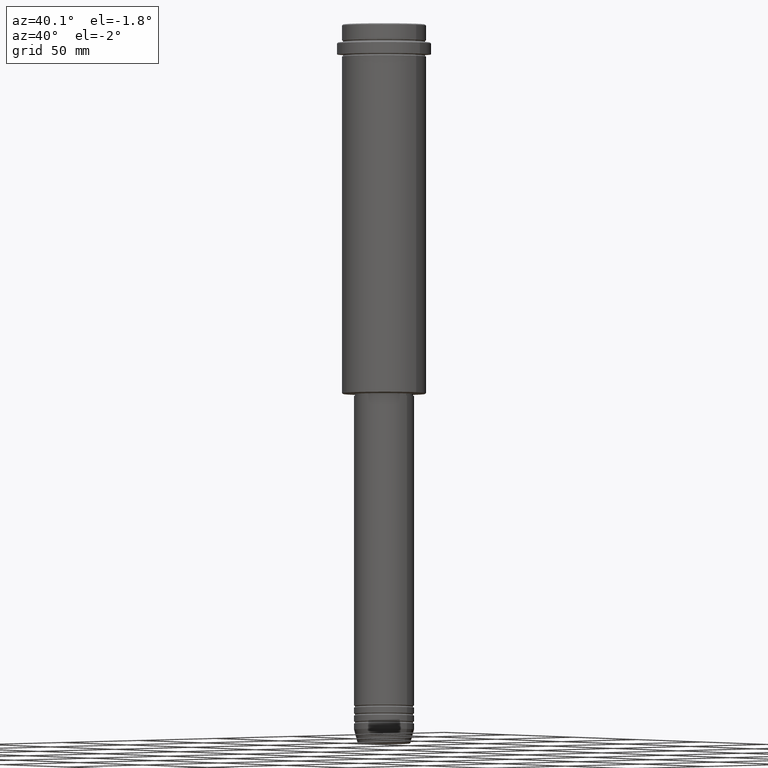
[diagram: clean part render]
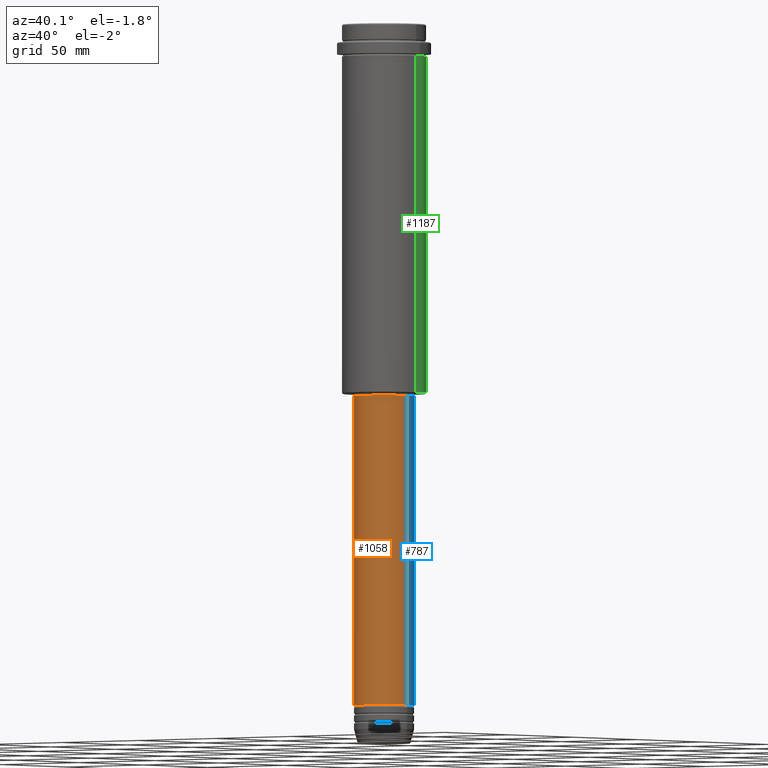
[diagram: same view with three faces highlighted in distinct colors, each labeled with its STEP entity id]
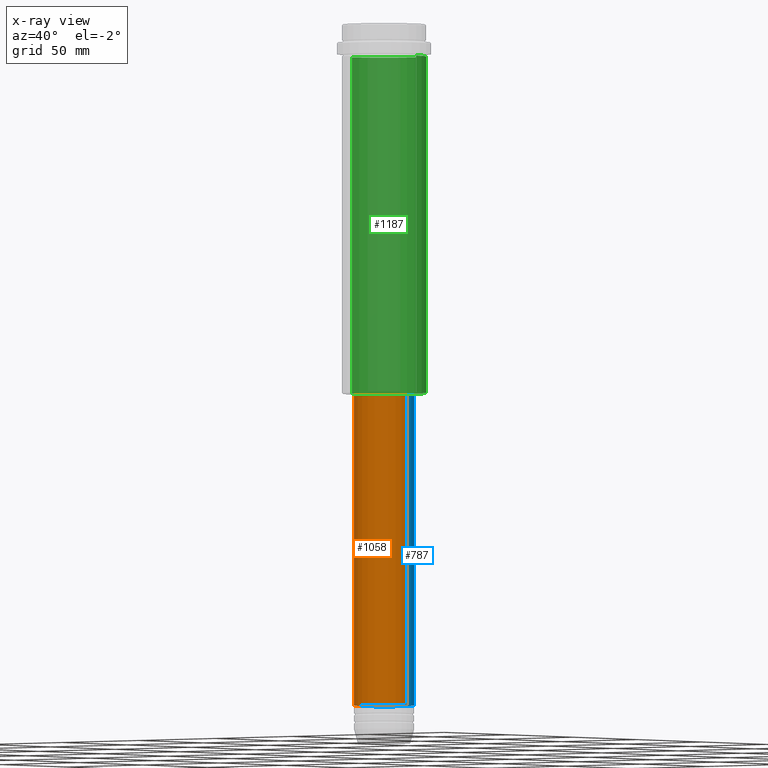
[diagram: x-ray of the same camera — body ghosted, the three highlighted faces saturated]
A machine part, auxiliary view with three faces highlighted in distinct colors.
The next image is the same camera in x-ray (body ghosted, the three faces saturated) — at least one of them is partly hidden behind the body in this view.
Their STEP definitions:

[orange] entity #1058 — the highlighted cylindrical surface (edge-blend (fillet) strip) has radius 15 mm, axis along (-0, -0, 1).
#103 = CARTESIAN_POINT ( 'NONE',  ( 0.000000000000000000, 0.000000000000000000, -340.9999999999998863 ) ) ;
#135 = DIRECTION ( 'NONE',  ( 1.000000000000000000, 0.000000000000000000, 0.000000000000000000 ) ) ;
#154 = AXIS2_PLACEMENT_3D ( 'NONE', #1144, #484, #135 ) ;
#234 = CARTESIAN_POINT ( 'NONE',  ( 15.00000000000000000, 0.000000000000000000, -185.9999999999999147 ) ) ;
#275 = ORIENTED_EDGE ( 'NONE', *, *, #1118, .F. ) ;
#300 = LINE ( 'NONE', #1155, #1320 ) ;
#314 = DIRECTION ( 'NONE',  ( -0.000000000000000000, -0.000000000000000000, 1.000000000000000000 ) ) ;
#327 = DIRECTION ( 'NONE',  ( 1.000000000000000000, 0.000000000000000000, 0.000000000000000000 ) ) ;
#451 = CARTESIAN_POINT ( 'NONE',  ( 15.00000000000000000, 0.000000000000000000, -340.9999999999998863 ) ) ;
#484 = DIRECTION ( 'NONE',  ( -0.000000000000000000, -0.000000000000000000, 1.000000000000000000 ) ) ;
#497 = DIRECTION ( 'NONE',  ( -0.000000000000000000, -0.000000000000000000, 1.000000000000000000 ) ) ;
#502 = CARTESIAN_POINT ( 'NONE',  ( 0.000000000000000000, 0.000000000000000000, -185.9999999999999147 ) ) ;
#543 = ORIENTED_EDGE ( 'NONE', *, *, #1219, .F. ) ;
#561 = CIRCLE ( 'NONE', #842, 15.00000000000000000 ) ;
#812 = CYLINDRICAL_SURFACE ( 'NONE', #154, 15.00000000000000000 ) ;
#842 = AXIS2_PLACEMENT_3D ( 'NONE', #103, #314, #327 ) ;
#843 = VECTOR ( 'NONE', #1018, 1000.000000000000000 ) ;
#853 = VERTEX_POINT ( 'NONE', #234 ) ;
#905 = EDGE_CURVE ( 'NONE', #999, #1349, #561, .T. ) ;
#999 = VERTEX_POINT ( 'NONE', #1106 ) ;
#1012 = LINE ( 'NONE', #1336, #843 ) ;
#1018 = DIRECTION ( 'NONE',  ( -0.000000000000000000, -0.000000000000000000, 1.000000000000000000 ) ) ;
#1058 = ADVANCED_FACE ( 'NONE', ( #1350 ), #812, .T. ) ;
#1106 = CARTESIAN_POINT ( 'NONE',  ( -15.00000000000000000, 1.836970198721029589E-15, -340.9999999999998863 ) ) ;
#1118 = EDGE_CURVE ( 'NONE', #999, #1325, #1012, .T. ) ;
#1144 = CARTESIAN_POINT ( 'NONE',  ( 0.000000000000000000, 0.000000000000000000, 0.000000000000000000 ) ) ;
#1155 = CARTESIAN_POINT ( 'NONE',  ( 15.00000000000000000, 0.000000000000000000, 0.000000000000000000 ) ) ;
#1165 = DIRECTION ( 'NONE',  ( -0.000000000000000000, -0.000000000000000000, 1.000000000000000000 ) ) ;
#1168 = EDGE_CURVE ( 'NONE', #1349, #853, #300, .T. ) ;
#1207 = CARTESIAN_POINT ( 'NONE',  ( -15.00000000000000000, 1.836970198721029589E-15, -185.9999999999999147 ) ) ;
#1219 = EDGE_CURVE ( 'NONE', #1325, #853, #1295, .T. ) ;
#1231 = AXIS2_PLACEMENT_3D ( 'NONE', #502, #1165, #1262 ) ;
#1262 = DIRECTION ( 'NONE',  ( 1.000000000000000000, 0.000000000000000000, 0.000000000000000000 ) ) ;
#1295 = CIRCLE ( 'NONE', #1231, 15.00000000000000000 ) ;
#1298 = EDGE_LOOP ( 'NONE', ( #275, #1301, #1308, #543 ) ) ;
#1301 = ORIENTED_EDGE ( 'NONE', *, *, #905, .T. ) ;
#1308 = ORIENTED_EDGE ( 'NONE', *, *, #1168, .T. ) ;
#1320 = VECTOR ( 'NONE', #497, 1000.000000000000000 ) ;
#1325 = VERTEX_POINT ( 'NONE', #1207 ) ;
#1336 = CARTESIAN_POINT ( 'NONE',  ( -15.00000000000000000, 1.836970198721029589E-15, 0.000000000000000000 ) ) ;
#1349 = VERTEX_POINT ( 'NONE', #451 ) ;
#1350 = FACE_OUTER_BOUND ( 'NONE', #1298, .T. ) ;

[blue] entity #787 — the highlighted cylindrical surface (edge-blend (fillet) strip) has radius 15 mm, axis along (-0, -0, 1).
#91 = DIRECTION ( 'NONE',  ( -0.000000000000000000, -0.000000000000000000, 1.000000000000000000 ) ) ;
#97 = CARTESIAN_POINT ( 'NONE',  ( 0.000000000000000000, 0.000000000000000000, -340.9999999999998863 ) ) ;
#163 = ORIENTED_EDGE ( 'NONE', *, *, #680, .T. ) ;
#225 = ORIENTED_EDGE ( 'NONE', *, *, #688, .F. ) ;
#234 = CARTESIAN_POINT ( 'NONE',  ( 15.00000000000000000, 0.000000000000000000, -185.9999999999999147 ) ) ;
#240 = DIRECTION ( 'NONE',  ( 1.000000000000000000, 0.000000000000000000, 0.000000000000000000 ) ) ;
#241 = AXIS2_PLACEMENT_3D ( 'NONE', #97, #91, #1302 ) ;
#300 = LINE ( 'NONE', #1155, #1320 ) ;
#317 = DIRECTION ( 'NONE',  ( -0.000000000000000000, -0.000000000000000000, 1.000000000000000000 ) ) ;
#378 = CIRCLE ( 'NONE', #507, 15.00000000000000000 ) ;
#423 = AXIS2_PLACEMENT_3D ( 'NONE', #681, #1222, #240 ) ;
#451 = CARTESIAN_POINT ( 'NONE',  ( 15.00000000000000000, 0.000000000000000000, -340.9999999999998863 ) ) ;
#497 = DIRECTION ( 'NONE',  ( -0.000000000000000000, -0.000000000000000000, 1.000000000000000000 ) ) ;
#507 = AXIS2_PLACEMENT_3D ( 'NONE', #1293, #317, #967 ) ;
#680 = EDGE_CURVE ( 'NONE', #1349, #999, #1136, .T. ) ;
#681 = CARTESIAN_POINT ( 'NONE',  ( 0.000000000000000000, 0.000000000000000000, 0.000000000000000000 ) ) ;
#687 = CYLINDRICAL_SURFACE ( 'NONE', #423, 15.00000000000000000 ) ;
#688 = EDGE_CURVE ( 'NONE', #853, #1325, #378, .T. ) ;
#787 = ADVANCED_FACE ( 'NONE', ( #789 ), #687, .T. ) ;
#789 = FACE_OUTER_BOUND ( 'NONE', #1311, .T. ) ;
#843 = VECTOR ( 'NONE', #1018, 1000.000000000000000 ) ;
#853 = VERTEX_POINT ( 'NONE', #234 ) ;
#967 = DIRECTION ( 'NONE',  ( 1.000000000000000000, 0.000000000000000000, 0.000000000000000000 ) ) ;
#999 = VERTEX_POINT ( 'NONE', #1106 ) ;
#1012 = LINE ( 'NONE', #1336, #843 ) ;
#1018 = DIRECTION ( 'NONE',  ( -0.000000000000000000, -0.000000000000000000, 1.000000000000000000 ) ) ;
#1101 = ORIENTED_EDGE ( 'NONE', *, *, #1168, .F. ) ;
#1106 = CARTESIAN_POINT ( 'NONE',  ( -15.00000000000000000, 1.836970198721029589E-15, -340.9999999999998863 ) ) ;
#1118 = EDGE_CURVE ( 'NONE', #999, #1325, #1012, .T. ) ;
#1136 = CIRCLE ( 'NONE', #241, 15.00000000000000000 ) ;
#1155 = CARTESIAN_POINT ( 'NONE',  ( 15.00000000000000000, 0.000000000000000000, 0.000000000000000000 ) ) ;
#1168 = EDGE_CURVE ( 'NONE', #1349, #853, #300, .T. ) ;
#1200 = ORIENTED_EDGE ( 'NONE', *, *, #1118, .T. ) ;
#1207 = CARTESIAN_POINT ( 'NONE',  ( -15.00000000000000000, 1.836970198721029589E-15, -185.9999999999999147 ) ) ;
#1222 = DIRECTION ( 'NONE',  ( -0.000000000000000000, -0.000000000000000000, 1.000000000000000000 ) ) ;
#1293 = CARTESIAN_POINT ( 'NONE',  ( 0.000000000000000000, 0.000000000000000000, -185.9999999999999147 ) ) ;
#1302 = DIRECTION ( 'NONE',  ( 1.000000000000000000, 0.000000000000000000, 0.000000000000000000 ) ) ;
#1311 = EDGE_LOOP ( 'NONE', ( #163, #1200, #225, #1101 ) ) ;
#1320 = VECTOR ( 'NONE', #497, 1000.000000000000000 ) ;
#1325 = VERTEX_POINT ( 'NONE', #1207 ) ;
#1336 = CARTESIAN_POINT ( 'NONE',  ( -15.00000000000000000, 1.836970198721029589E-15, 0.000000000000000000 ) ) ;
#1349 = VERTEX_POINT ( 'NONE', #451 ) ;

[green] entity #1187 — the highlighted cylindrical surface (partial cylindrical patch) has radius 21 mm, axis along (-0, -0, 1).
#72 = CARTESIAN_POINT ( 'NONE',  ( 0.000000000000000000, 0.000000000000000000, -184.5000000000000284 ) ) ;
#98 = EDGE_CURVE ( 'NONE', #971, #653, #505, .T. ) ;
#169 = ORIENTED_EDGE ( 'NONE', *, *, #98, .T. ) ;
#218 = CARTESIAN_POINT ( 'NONE',  ( 20.99999999999999645, 0.000000000000000000, -184.5000000000000284 ) ) ;
#271 = VERTEX_POINT ( 'NONE', #1328 ) ;
#344 = LINE ( 'NONE', #902, #585 ) ;
#387 = EDGE_CURVE ( 'NONE', #271, #642, #1223, .T. ) ;
#476 = DIRECTION ( 'NONE',  ( -0.000000000000000000, -0.000000000000000000, 1.000000000000000000 ) ) ;
#505 = CIRCLE ( 'NONE', #838, 20.99999999999999645 ) ;
#515 = LINE ( 'NONE', #733, #1206 ) ;
#517 = ORIENTED_EDGE ( 'NONE', *, *, #1240, .T. ) ;
#525 = CARTESIAN_POINT ( 'NONE',  ( -20.99999999999999645, 2.571758278209441267E-15, -16.00000000000000355 ) ) ;
#573 = ORIENTED_EDGE ( 'NONE', *, *, #387, .F. ) ;
#585 = VECTOR ( 'NONE', #476, 1000.000000000000000 ) ;
#616 = FACE_OUTER_BOUND ( 'NONE', #1098, .T. ) ;
#642 = VERTEX_POINT ( 'NONE', #525 ) ;
#645 = CARTESIAN_POINT ( 'NONE',  ( -20.99999999999999645, 2.571758278209441267E-15, -184.5000000000000284 ) ) ;
#653 = VERTEX_POINT ( 'NONE', #645 ) ;
#712 = DIRECTION ( 'NONE',  ( 1.000000000000000000, 0.000000000000000000, 0.000000000000000000 ) ) ;
#733 = CARTESIAN_POINT ( 'NONE',  ( -20.99999999999999645, 2.571758278209441267E-15, 0.000000000000000000 ) ) ;
#737 = DIRECTION ( 'NONE',  ( 1.000000000000000000, 0.000000000000000000, 0.000000000000000000 ) ) ;
#748 = AXIS2_PLACEMENT_3D ( 'NONE', #836, #831, #737 ) ;
#778 = EDGE_CURVE ( 'NONE', #971, #271, #344, .T. ) ;
#811 = ORIENTED_EDGE ( 'NONE', *, *, #778, .F. ) ;
#831 = DIRECTION ( 'NONE',  ( -0.000000000000000000, -0.000000000000000000, 1.000000000000000000 ) ) ;
#836 = CARTESIAN_POINT ( 'NONE',  ( 0.000000000000000000, 0.000000000000000000, 0.000000000000000000 ) ) ;
#838 = AXIS2_PLACEMENT_3D ( 'NONE', #72, #949, #1286 ) ;
#846 = CYLINDRICAL_SURFACE ( 'NONE', #748, 20.99999999999999645 ) ;
#902 = CARTESIAN_POINT ( 'NONE',  ( 20.99999999999999645, 0.000000000000000000, 0.000000000000000000 ) ) ;
#949 = DIRECTION ( 'NONE',  ( -0.000000000000000000, -0.000000000000000000, 1.000000000000000000 ) ) ;
#952 = AXIS2_PLACEMENT_3D ( 'NONE', #1354, #1124, #712 ) ;
#971 = VERTEX_POINT ( 'NONE', #218 ) ;
#1098 = EDGE_LOOP ( 'NONE', ( #169, #517, #573, #811 ) ) ;
#1124 = DIRECTION ( 'NONE',  ( -0.000000000000000000, -0.000000000000000000, 1.000000000000000000 ) ) ;
#1187 = ADVANCED_FACE ( 'NONE', ( #616 ), #846, .T. ) ;
#1206 = VECTOR ( 'NONE', #1270, 1000.000000000000000 ) ;
#1223 = CIRCLE ( 'NONE', #952, 20.99999999999999645 ) ;
#1240 = EDGE_CURVE ( 'NONE', #653, #642, #515, .T. ) ;
#1270 = DIRECTION ( 'NONE',  ( -0.000000000000000000, -0.000000000000000000, 1.000000000000000000 ) ) ;
#1286 = DIRECTION ( 'NONE',  ( -1.000000000000000000, 0.000000000000000000, 0.000000000000000000 ) ) ;
#1328 = CARTESIAN_POINT ( 'NONE',  ( 20.99999999999999645, 0.000000000000000000, -16.00000000000000355 ) ) ;
#1354 = CARTESIAN_POINT ( 'NONE',  ( 0.000000000000000000, 0.000000000000000000, -16.00000000000000355 ) ) ;